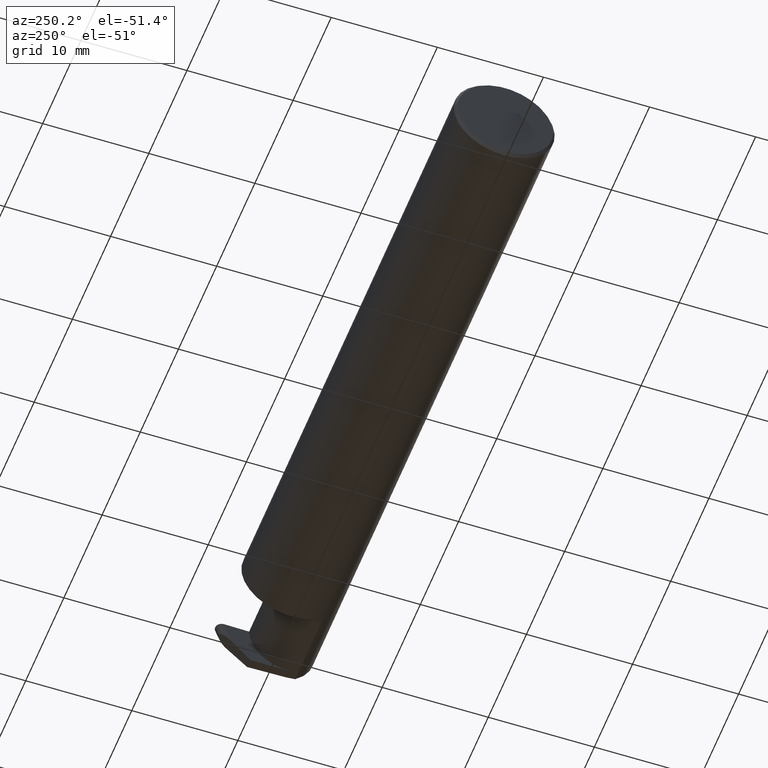
[diagram: clean part render]
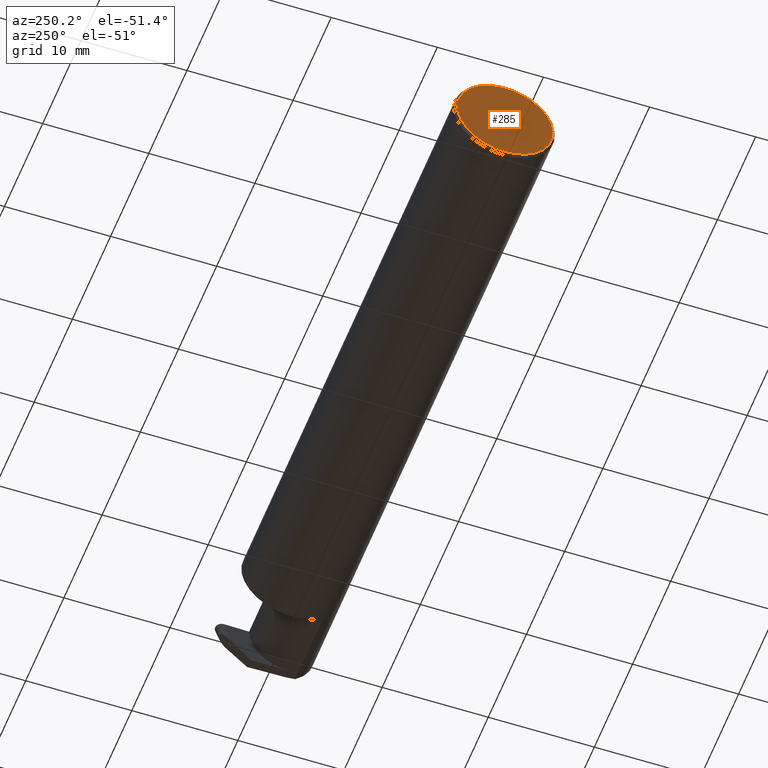
[diagram: same view with one face highlighted and labeled with its STEP entity id]
A machine part, auxiliary view. The second image highlights one B-rep face of the part: STEP entity #285.
In plain terms, the highlighted planar face has unit normal (1, 0, 0).
Its self-contained STEP definition (entity closure, byte-faithful):
#6 = DIRECTION ( 'NONE',  ( -1.000000000000000000, -0.000000000000000000, -0.000000000000000000 ) ) ;
#8 = DIRECTION ( 'NONE',  ( 0.000000000000000000, 0.000000000000000000, -1.000000000000000000 ) ) ;
#17 = EDGE_CURVE ( 'NONE', #516, #431, #252, .T. ) ;
#27 = VERTEX_POINT ( 'NONE', #37 ) ;
#33 = ORIENTED_EDGE ( 'NONE', *, *, #17, .T. ) ;
#37 = CARTESIAN_POINT ( 'NONE',  ( 0.000000000000000000, -0.01880691362239451242, 0.1763499999999999235 ) ) ;
#108 = VECTOR ( 'NONE', #578, 39.37007874015748143 ) ;
#147 = DIRECTION ( 'NONE',  ( 0.000000000000000000, 0.000000000000000000, -1.000000000000000000 ) ) ;
#151 = AXIS2_PLACEMENT_3D ( 'NONE', #470, #526, #147 ) ;
#155 = CARTESIAN_POINT ( 'NONE',  ( 0.000000000000000000, 0.01880691362239451242, 0.1763499999999999235 ) ) ;
#166 = AXIS2_PLACEMENT_3D ( 'NONE', #579, #279, #8 ) ;
#252 = CIRCLE ( 'NONE', #151, 0.1773500000000005072 ) ;
#254 = EDGE_LOOP ( 'NONE', ( #649, #33, #422 ) ) ;
#279 = DIRECTION ( 'NONE',  ( 1.000000000000000000, 0.000000000000000000, 0.000000000000000000 ) ) ;
#285 = ADVANCED_FACE ( 'NONE', ( #373 ), #582, .F. ) ;
#371 = CARTESIAN_POINT ( 'NONE',  ( 0.000000000000000000, 0.1873499999999998500, 0.1763499999999999235 ) ) ;
#373 = FACE_OUTER_BOUND ( 'NONE', #254, .T. ) ;
#379 = DIRECTION ( 'NONE',  ( 0.000000000000000000, 0.000000000000000000, -1.000000000000000000 ) ) ;
#381 = CIRCLE ( 'NONE', #437, 0.1773500000000005072 ) ;
#418 = EDGE_CURVE ( 'NONE', #27, #516, #693, .T. ) ;
#422 = ORIENTED_EDGE ( 'NONE', *, *, #445, .T. ) ;
#431 = VERTEX_POINT ( 'NONE', #464 ) ;
#437 = AXIS2_PLACEMENT_3D ( 'NONE', #704, #6, #379 ) ;
#445 = EDGE_CURVE ( 'NONE', #431, #27, #381, .T. ) ;
#464 = CARTESIAN_POINT ( 'NONE',  ( 0.000000000000000000, 0.000000000000000000, -0.1773500000000005072 ) ) ;
#470 = CARTESIAN_POINT ( 'NONE',  ( 0.000000000000000000, 0.000000000000000000, 0.000000000000000000 ) ) ;
#516 = VERTEX_POINT ( 'NONE', #155 ) ;
#526 = DIRECTION ( 'NONE',  ( -1.000000000000000000, -0.000000000000000000, -0.000000000000000000 ) ) ;
#578 = DIRECTION ( 'NONE',  ( -0.000000000000000000, 1.000000000000000000, -0.000000000000000000 ) ) ;
#579 = CARTESIAN_POINT ( 'NONE',  ( 0.000000000000000000, 0.000000000000000000, 0.000000000000000000 ) ) ;
#582 = PLANE ( 'NONE',  #166 ) ;
#649 = ORIENTED_EDGE ( 'NONE', *, *, #418, .T. ) ;
#693 = LINE ( 'NONE', #371, #108 ) ;
#704 = CARTESIAN_POINT ( 'NONE',  ( 0.000000000000000000, 0.000000000000000000, 0.000000000000000000 ) ) ;